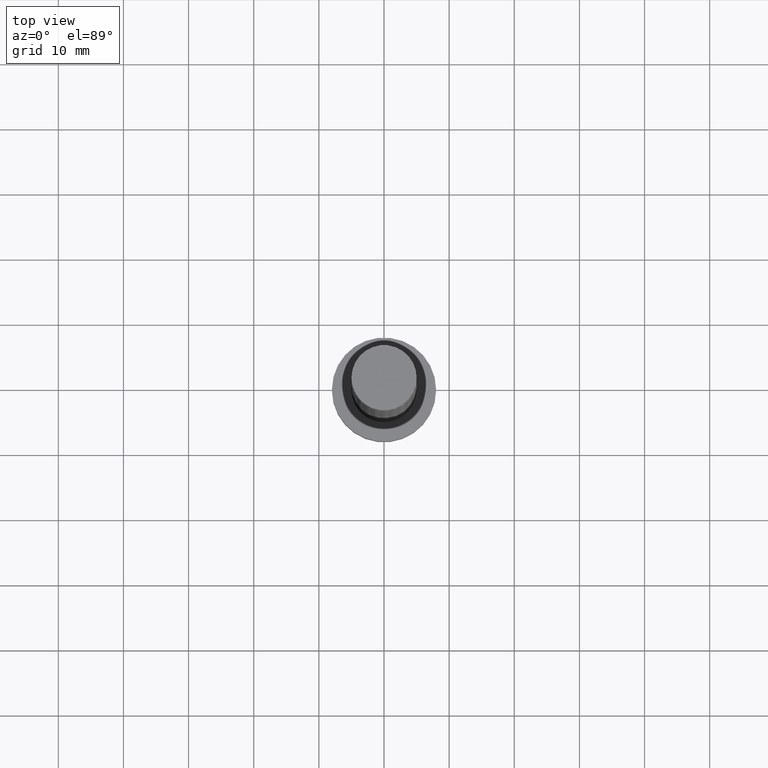
[diagram: clean part render]
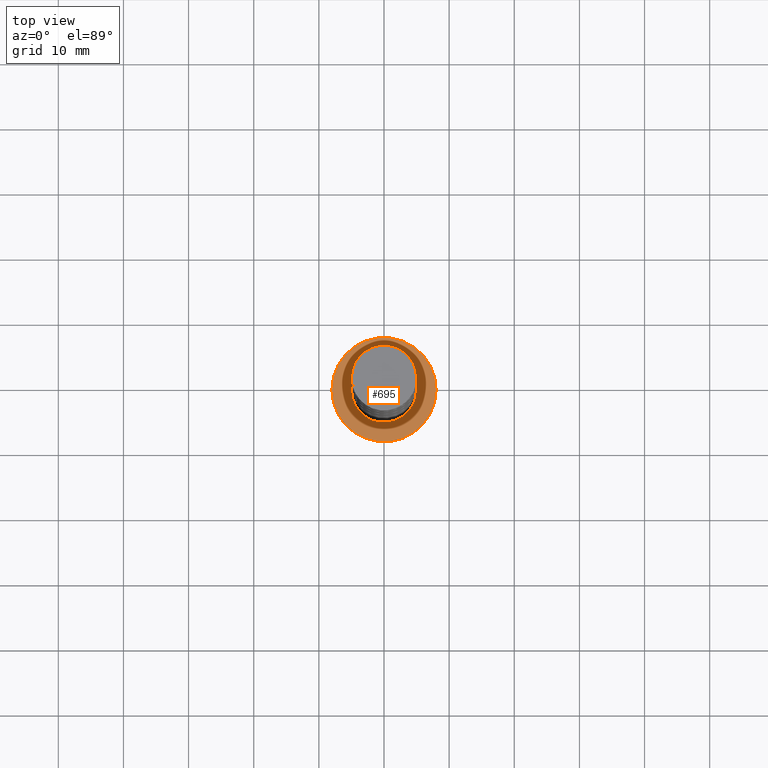
[diagram: same view with one face highlighted and labeled with its STEP entity id]
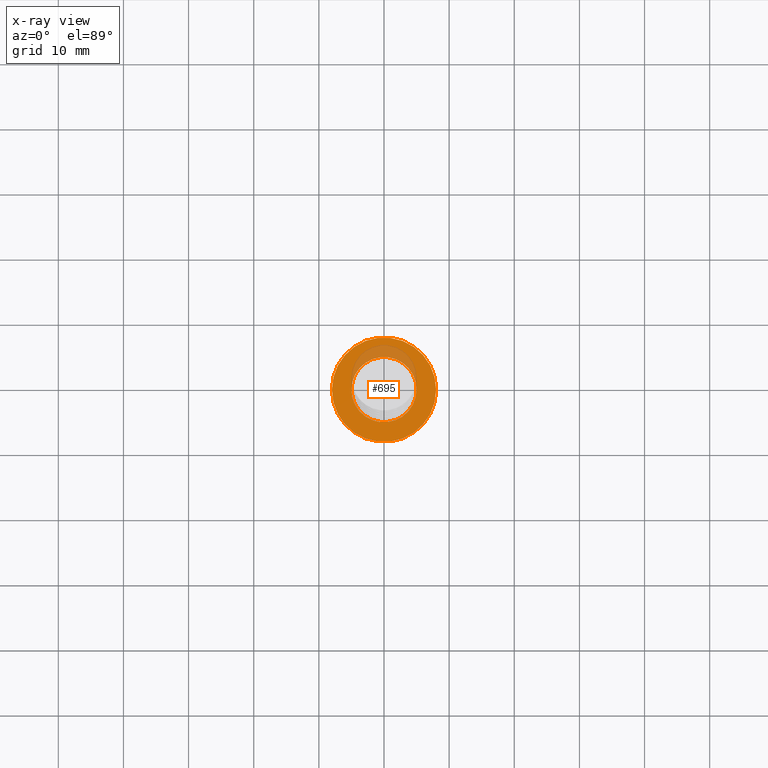
[diagram: x-ray of the same camera — body ghosted, the highlighted face saturated]
A machine part, top view. The second image highlights one B-rep face of the part: STEP entity #695.
The next image is the same camera in x-ray: the body ghosted, the highlighted face saturated — about 15% of this face is hidden behind the body in this view.
In plain terms, the highlighted planar face has unit normal (0, 0, 1).
Its self-contained STEP definition (entity closure, byte-faithful):
#15 = AXIS2_PLACEMENT_3D ( 'NONE', #873, #1114, #1222 ) ;
#88 = DIRECTION ( 'NONE',  ( 1.000000000000000000, 0.000000000000000000, -0.000000000000000000 ) ) ;
#140 = ORIENTED_EDGE ( 'NONE', *, *, #151, .F. ) ;
#151 = EDGE_CURVE ( 'NONE', #903, #411, #1480, .T. ) ;
#224 = EDGE_CURVE ( 'NONE', #1395, #1575, #1226, .T. ) ;
#228 = FACE_OUTER_BOUND ( 'NONE', #896, .T. ) ;
#237 = AXIS2_PLACEMENT_3D ( 'NONE', #1508, #1266, #1492 ) ;
#411 = VERTEX_POINT ( 'NONE', #1405 ) ;
#485 = CARTESIAN_POINT ( 'NONE',  ( 0.000000000000000000, 0.000000000000000000, 5.000000000000000000 ) ) ;
#550 = CIRCLE ( 'NONE', #1253, 5.000000000000000000 ) ;
#554 = DIRECTION ( 'NONE',  ( 1.000000000000000000, 0.000000000000000000, 0.000000000000000000 ) ) ;
#560 = EDGE_LOOP ( 'NONE', ( #641, #140 ) ) ;
#589 = CARTESIAN_POINT ( 'NONE',  ( 0.000000000000000000, 0.000000000000000000, 5.000000000000000000 ) ) ;
#641 = ORIENTED_EDGE ( 'NONE', *, *, #1004, .F. ) ;
#695 = ADVANCED_FACE ( 'NONE', ( #931, #228 ), #716, .T. ) ;
#702 = DIRECTION ( 'NONE',  ( 0.000000000000000000, 0.000000000000000000, 1.000000000000000000 ) ) ;
#716 = PLANE ( 'NONE',  #1453 ) ;
#766 = CARTESIAN_POINT ( 'NONE',  ( 8.000000000000000000, 9.797174393178825657E-16, 5.000000000000000000 ) ) ;
#779 = CARTESIAN_POINT ( 'NONE',  ( 5.000000000000000000, 6.123233995736766282E-16, 5.000000000000000000 ) ) ;
#788 = DIRECTION ( 'NONE',  ( 0.000000000000000000, 0.000000000000000000, 1.000000000000000000 ) ) ;
#873 = CARTESIAN_POINT ( 'NONE',  ( 0.000000000000000000, 0.000000000000000000, 5.000000000000000000 ) ) ;
#896 = EDGE_LOOP ( 'NONE', ( #1050, #1271 ) ) ;
#903 = VERTEX_POINT ( 'NONE', #779 ) ;
#907 = CARTESIAN_POINT ( 'NONE',  ( 0.000000000000000000, 0.000000000000000000, 5.000000000000000000 ) ) ;
#931 = FACE_BOUND ( 'NONE', #560, .T. ) ;
#972 = DIRECTION ( 'NONE',  ( 0.000000000000000000, 0.000000000000000000, 1.000000000000000000 ) ) ;
#1004 = EDGE_CURVE ( 'NONE', #411, #903, #550, .T. ) ;
#1050 = ORIENTED_EDGE ( 'NONE', *, *, #1338, .T. ) ;
#1114 = DIRECTION ( 'NONE',  ( 0.000000000000000000, 0.000000000000000000, 1.000000000000000000 ) ) ;
#1187 = CARTESIAN_POINT ( 'NONE',  ( -8.000000000000000000, 0.000000000000000000, 5.000000000000000000 ) ) ;
#1222 = DIRECTION ( 'NONE',  ( 1.000000000000000000, 0.000000000000000000, 0.000000000000000000 ) ) ;
#1226 = CIRCLE ( 'NONE', #237, 8.000000000000000000 ) ;
#1251 = AXIS2_PLACEMENT_3D ( 'NONE', #485, #972, #1442 ) ;
#1253 = AXIS2_PLACEMENT_3D ( 'NONE', #907, #788, #554 ) ;
#1266 = DIRECTION ( 'NONE',  ( 0.000000000000000000, 0.000000000000000000, 1.000000000000000000 ) ) ;
#1271 = ORIENTED_EDGE ( 'NONE', *, *, #224, .T. ) ;
#1338 = EDGE_CURVE ( 'NONE', #1575, #1395, #1411, .T. ) ;
#1395 = VERTEX_POINT ( 'NONE', #766 ) ;
#1405 = CARTESIAN_POINT ( 'NONE',  ( -5.000000000000000000, 0.000000000000000000, 5.000000000000000000 ) ) ;
#1411 = CIRCLE ( 'NONE', #15, 8.000000000000000000 ) ;
#1442 = DIRECTION ( 'NONE',  ( 1.000000000000000000, 0.000000000000000000, 0.000000000000000000 ) ) ;
#1453 = AXIS2_PLACEMENT_3D ( 'NONE', #589, #702, #88 ) ;
#1480 = CIRCLE ( 'NONE', #1251, 5.000000000000000000 ) ;
#1492 = DIRECTION ( 'NONE',  ( 1.000000000000000000, 0.000000000000000000, 0.000000000000000000 ) ) ;
#1508 = CARTESIAN_POINT ( 'NONE',  ( 0.000000000000000000, 0.000000000000000000, 5.000000000000000000 ) ) ;
#1575 = VERTEX_POINT ( 'NONE', #1187 ) ;